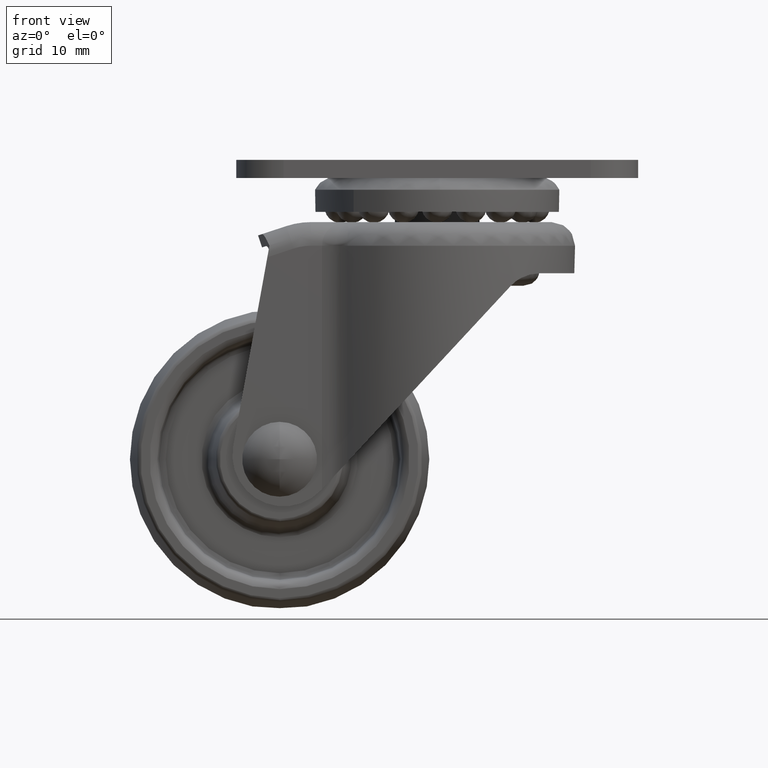
[diagram: clean part render]
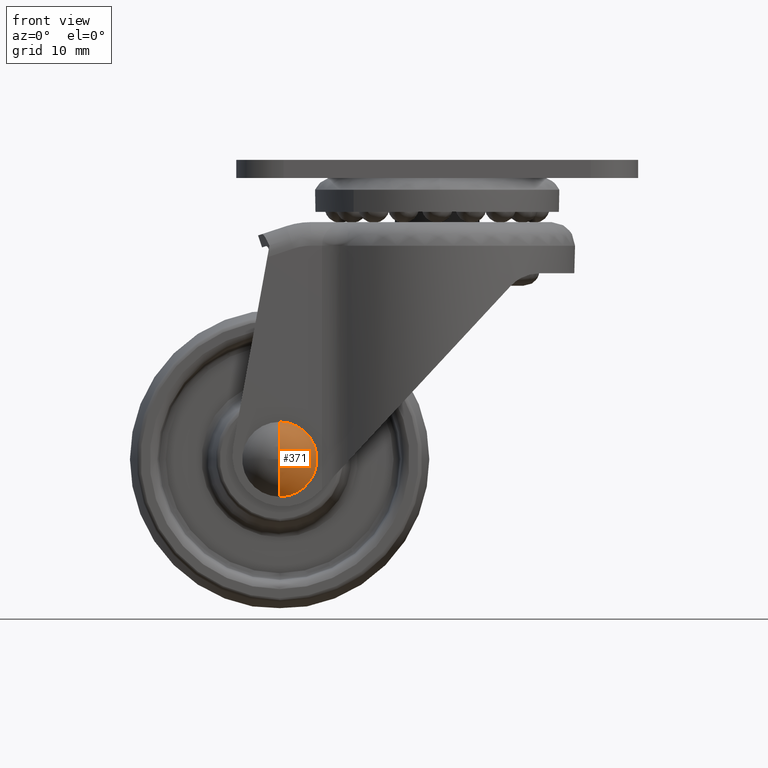
[diagram: same view with one face highlighted and labeled with its STEP entity id]
A machine part, front view. The second image highlights one B-rep face of the part: STEP entity #371.
In plain terms, the highlighted spherical surface has radius 6 mm.
Its self-contained STEP definition (entity closure, byte-faithful):
#371=ADVANCED_FACE('',(#1956),#1955,.T.);
#1955=SPHERICAL_SURFACE('',#4477,6.00000000000E+00);
#1956=FACE_OUTER_BOUND('',#4478,.T.);
#4474=CARTESIAN_POINT('',(2.18999960000E+01,0.00000000000E+00,0.00000000000E+00));
#4475=DIRECTION('',(-1.00000000000E+00,-0.00000000000E+00,-0.00000000000E+00));
#4476=DIRECTION('',(0.00000000000E+00,2.44917226232E-16,1.00000000000E+00));
#4477=AXIS2_PLACEMENT_3D('',#4474,#4475,#4476);
#4478=EDGE_LOOP('',(#6077,#6078,#6079));
#6077=ORIENTED_EDGE('',*,*,#6678,.T.);
#6078=ORIENTED_EDGE('',*,*,#6680,.F.);
#6079=ORIENTED_EDGE('',*,*,#6679,.F.);
#6678=EDGE_CURVE('',#9554,#9546,#9555,.T.);
#6679=EDGE_CURVE('',#9554,#9547,#9561,.T.);
#6680=EDGE_CURVE('',#9547,#9546,#9567,.T.);
#9546=VERTEX_POINT('',#13643);
#9547=VERTEX_POINT('',#13644);
#9554=VERTEX_POINT('',#13649);
#9555=(BOUNDED_CURVE() B_SPLINE_CURVE(2,(#13650,#13651,#13652),.UNSPECIFIED.,.F.,.F.) B_SPLINE_CURVE_WITH_KNOTS((3,3),(0.00000000000E+00,1.00000000000E+00),.UNSPECIFIED.) CURVE() GEOMETRIC_REPRESENTATION_ITEM() RATIONAL_B_SPLINE_CURVE((1.00000000000E+00,8.97483495261E-01,1.00000000000E+00)) REPRESENTATION_ITEM('') );
#9561=(BOUNDED_CURVE() B_SPLINE_CURVE(2,(#13653,#13654,#13655),.UNSPECIFIED.,.F.,.F.) B_SPLINE_CURVE_WITH_KNOTS((3,3),(0.00000000000E+00,1.00000000000E+00),.UNSPECIFIED.) CURVE() GEOMETRIC_REPRESENTATION_ITEM() RATIONAL_B_SPLINE_CURVE((7.50000000000E-01,6.73112621446E-01,7.50000000000E-01)) REPRESENTATION_ITEM('') );
#9567=CIRCLE('',#13659,4.75000006438E+00);
#13643=CARTESIAN_POINT('',(2.55657154912E+01,-4.21225996162E-10,-4.75000006438E+00));
#13644=CARTESIAN_POINT('',(2.55657154912E+01,4.21229865803E-10,4.75000006438E+00));
#13649=CARTESIAN_POINT('',(2.78999960000E+01,-1.34973922628E-31,-3.67394039744E-16));
#13650=CARTESIAN_POINT('',(2.78999960000E+01,-1.34973922628E-31,-3.67394039744E-16));
#13651=CARTESIAN_POINT('',(2.78999960000E+01,-1.08324936148E-15,-2.94856481324E+00));
#13652=CARTESIAN_POINT('',(2.55657154912E+01,-1.74506407786E-15,-4.75000006440E+00));
#13653=CARTESIAN_POINT('',(2.78999960000E+01,1.47911419729E-31,3.67394039744E-16));
#13654=CARTESIAN_POINT('',(2.78999960000E+01,1.31950938283E-15,2.94856481324E+00));
#13655=CARTESIAN_POINT('',(2.55657154912E+01,2.07241631263E-15,4.75000006440E+00));
#13656=CARTESIAN_POINT('',(2.55657154912E+01,0.00000000000E+00,0.00000000000E+00));
#13657=DIRECTION('',(-1.00000000000E+00,-0.00000000000E+00,0.00000000000E+00));
#13658=DIRECTION('',(0.00000000000E+00,-8.86799673560E-11,-1.00000000000E+00));
#13659=AXIS2_PLACEMENT_3D('',#13656,#13657,#13658);